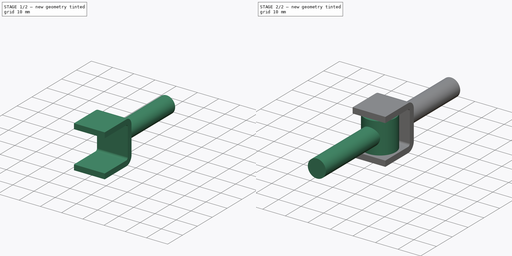
[diagram: build sequence overview — one tinted view per stage of 2, left to right]
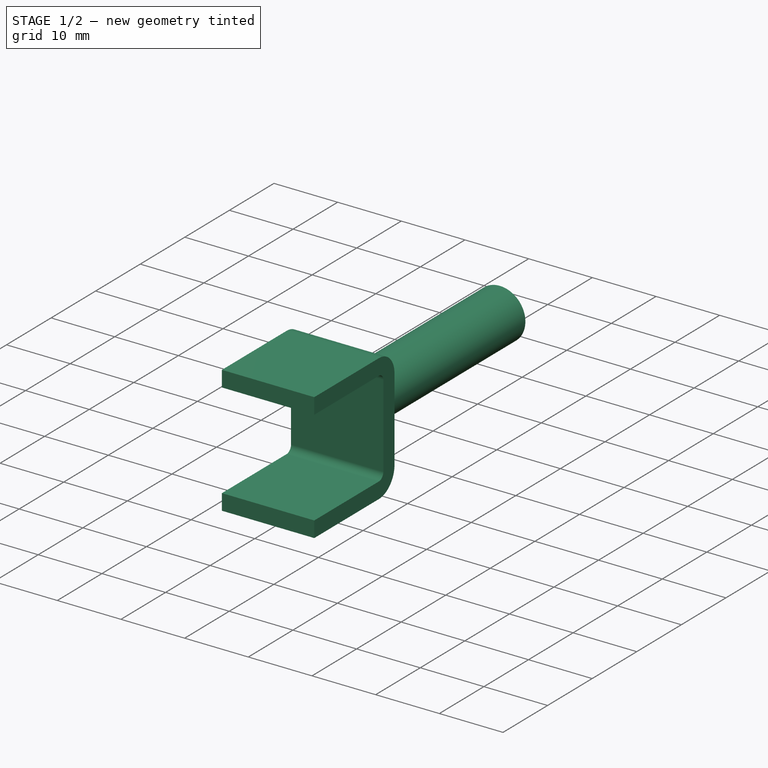
[diagram: stage 1 of 2 — iso view after this stage's code; geometry added in this stage tinted green]
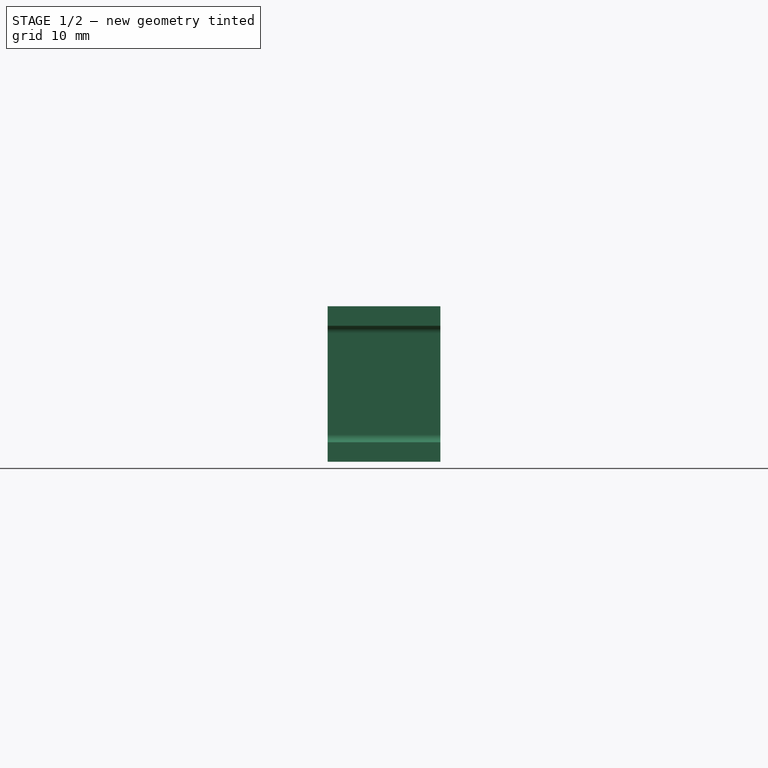
[diagram: stage 1 of 2 — front view after this stage's code; geometry added in this stage tinted green]
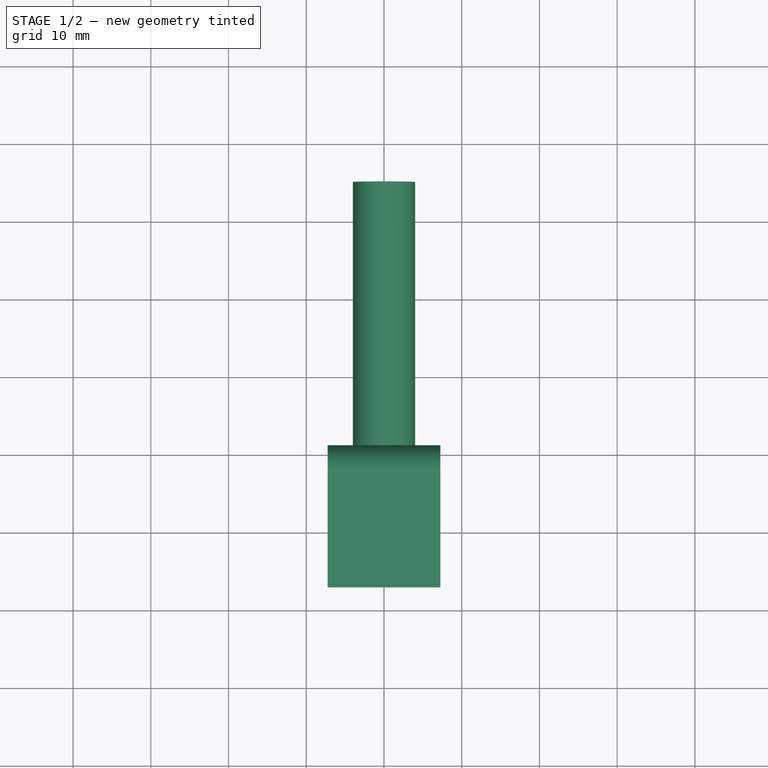
[diagram: stage 1 of 2 — top view after this stage's code; geometry added in this stage tinted green]
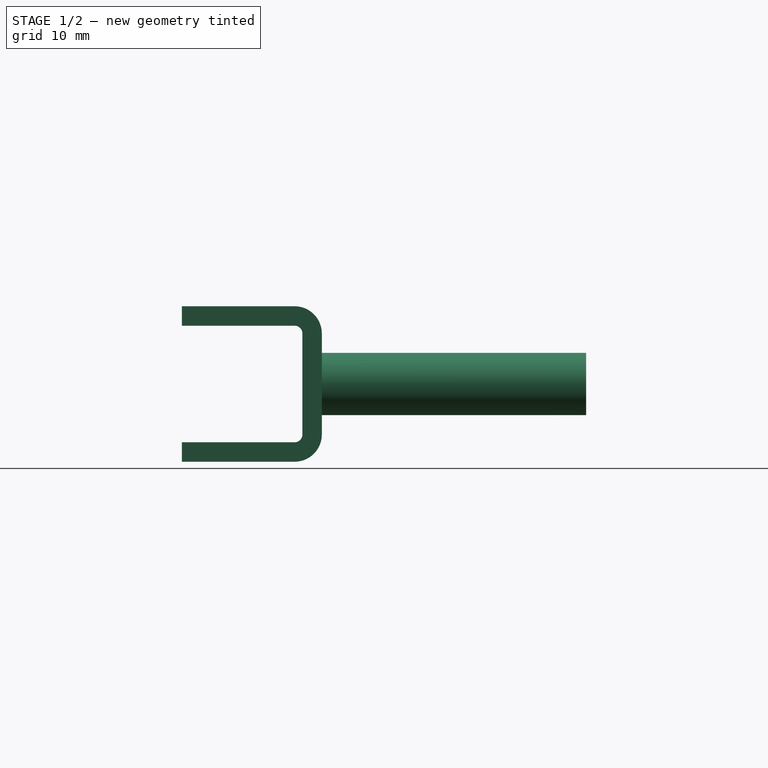
[diagram: stage 1 of 2 — right view after this stage's code; geometry added in this stage tinted green]
FCSTD DOCUMENT  (FreeCAD 0.22R34198 (Git))
Label: joint8mm
License: All rights reserved
LicenseURL: http://en.wikipedia.org/wiki/All_rights_reserved
objects: PartDesign::AdditiveCylinder×3, Sketcher::SketchObject×2, PartDesign::Body×2, PartDesign::FeaturePython×1, App::Part×1
note: 11 computed .brp shape members not serialized (recipe doc carries the construction recipe); baked Part::Feature solids carry a one-line shape summary decoded from their .brp

FEATURE [PartDesign::Body] Body
  Group = -> [Sketch,Cylinder,Cylinder001]
  Origin = -> Origin001
  Tip = -> Cylinder001
FEATURE [Sketcher::SketchObject] Sketch001
  FullyConstrained = true
  MapMode = 5
  Placement = pos=(0,0,0) rot=(0.57735,0.57735,0.57735;2.0944rad)
  Support = -> [YZ_Plane002]
  sketch-geometry (5):
    g0: LineSegment StartX=-7 StartY=-7.5 StartZ=0 EndX=-7 EndY=7.5 EndZ=0
    g1: LineSegment StartX=-7 StartY=7.5 StartZ=0 EndX=8.5 EndY=7.5 EndZ=0
    g2: LineSegment StartX=8.5 StartY=7.5 StartZ=0 EndX=8.5 EndY=-7.5 EndZ=0
    g3: LineSegment StartX=8.5 StartY=-7.5 StartZ=0 EndX=-7 EndY=-7.5 EndZ=0
    g4: GeomPoint X=0.75 Y=0 Z=0
  constraints (13):
    c: Coincident(g0,g1)
    c: Coincident(g1,g2)
    c: Coincident(g2,g3)
    c: Coincident(g3,g0)
    c: Horizontal(g1)
    c: Horizontal(g3)
    c: Vertical(g0)
    c: Vertical(g2)
    c: Symmetric(g1,g0,g4)
    c: PointOnObject(g4,g-1)
    c: DistanceY(g2,g2) = 15
    c: DistanceX(g1,g1) = 15.5
    c: DistanceX(g-1,g1) = 8.5
FEATURE [PartDesign::FeaturePython] BaseBend  # WARN: FeaturePython — macro-defined, semantics opaque (R4)
  BendSide = 1
  BendSketch = -> Sketch001
  MidPlane = true
  Reverse = false
  length = 14.5
  radius = 1
  thickness = 2.5
FEATURE [PartDesign::AdditiveCylinder] Cylinder002
  Angle = 360
  AttacherType = Attacher::AttachEngine3D
  AttachmentOffset = pos=(0,0,-11) rot=(1,0,0;3.14159rad)
  BaseFeature = -> BaseBend
  FirstAngle = 0
  Height = 34
  MapMode = 5
  Placement = pos=(0,11,2.4e-15) rot=(1,0,0;4.71239rad)
  Radius = 4
  SecondAngle = 0
  Support = -> [XZ_Plane002]
FEATURE [PartDesign::Body] Body001
  Group = -> [Sketch001,BaseBend,Cylinder002]
  Origin = -> Origin002
  Placement = pos=(0,0,0) rot=(0,0,-1;1.5708rad)
  Tip = -> Cylinder002
FEATURE [App::Part] Part
  Group = -> [Body,Body001]
  Origin = -> Origin
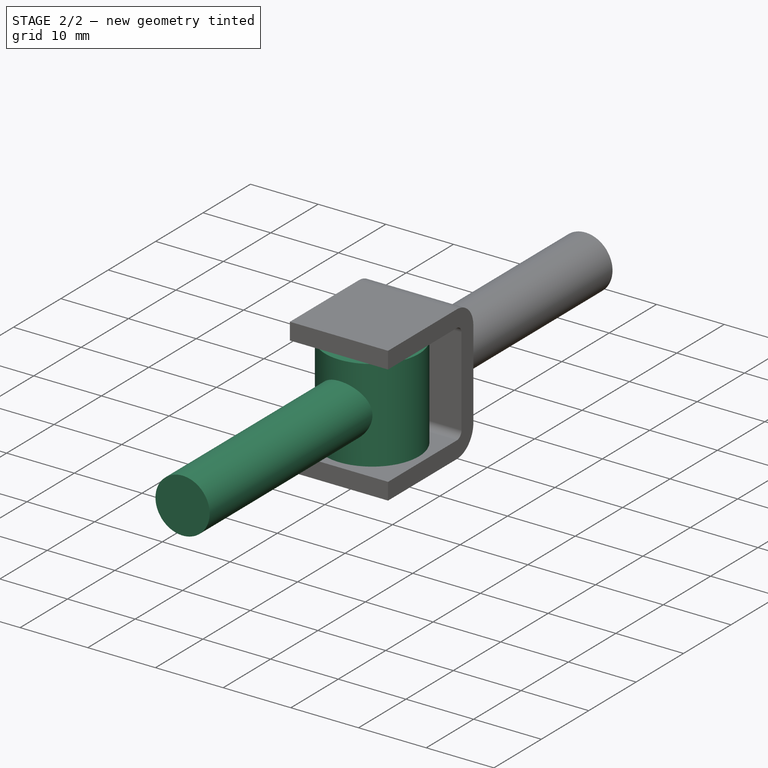
[diagram: stage 2 of 2 — iso view after this stage's code; geometry added in this stage tinted green]
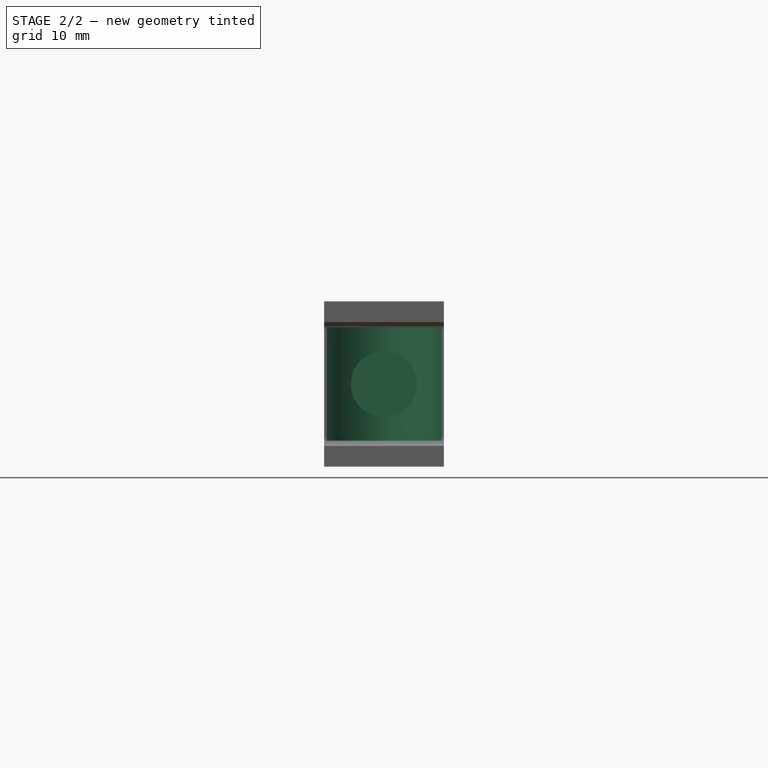
[diagram: stage 2 of 2 — front view after this stage's code; geometry added in this stage tinted green]
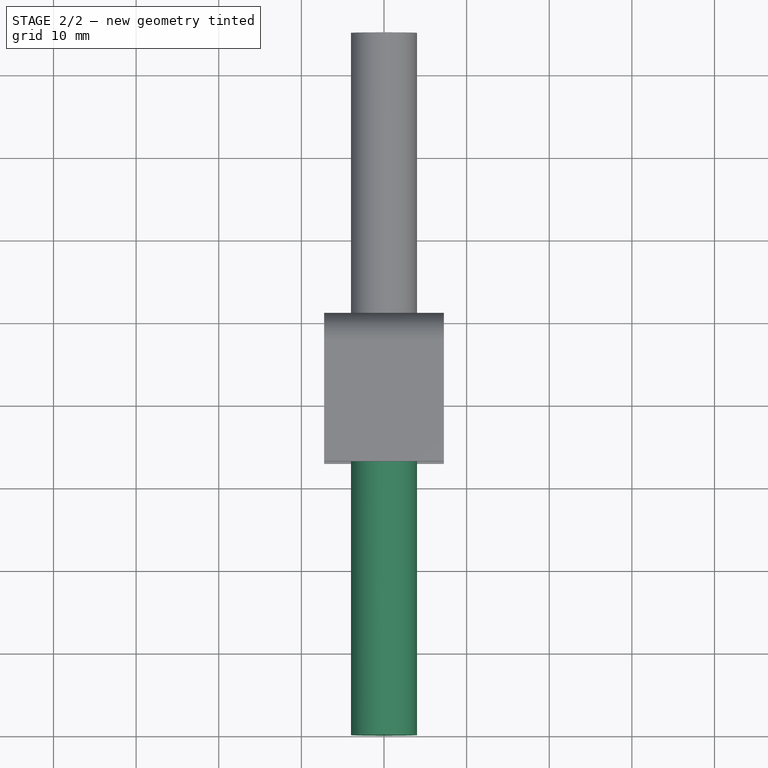
[diagram: stage 2 of 2 — top view after this stage's code; geometry added in this stage tinted green]
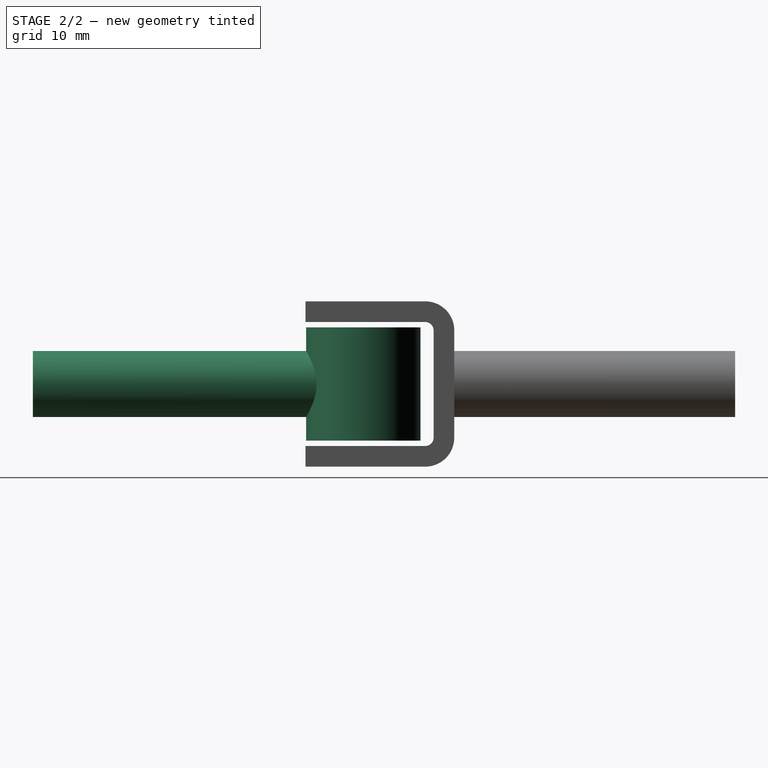
[diagram: stage 2 of 2 — right view after this stage's code; geometry added in this stage tinted green]
FEATURE [Sketcher::SketchObject] Sketch
  FullyConstrained = true
  MapMode = 5
  Support = -> [XY_Plane001]
FEATURE [PartDesign::AdditiveCylinder] Cylinder
  Angle = 360
  AttacherType = Attacher::AttachEngine3D
  AttachmentOffset = pos=(0,0,-6.85) rot=(0,0,1;0rad)
  FirstAngle = 0
  Height = 13.7
  MapMode = 5
  Placement = pos=(0,0,-6.85) rot=(0,0,1;0rad)
  Radius = 6.925
  SecondAngle = 0
  Support = -> [XY_Plane001]
  expr: .AttachmentOffset.Base.z = -Height / 2
FEATURE [PartDesign::AdditiveCylinder] Cylinder001
  Angle = 360
  AttacherType = Attacher::AttachEngine3D
  BaseFeature = -> Cylinder
  FirstAngle = 0
  Height = 40
  MapMode = 5
  Placement = pos=(0,0,0) rot=(1,0,0;1.5708rad)
  Radius = 4
  SecondAngle = 0
  Support = -> [XZ_Plane001]
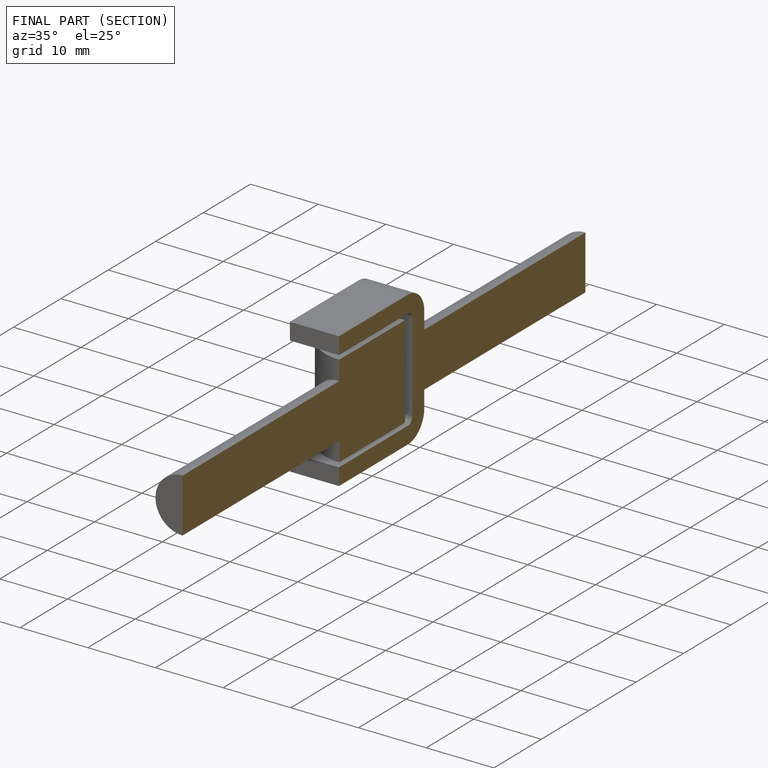
[diagram: finished part — half-section view (interior)]
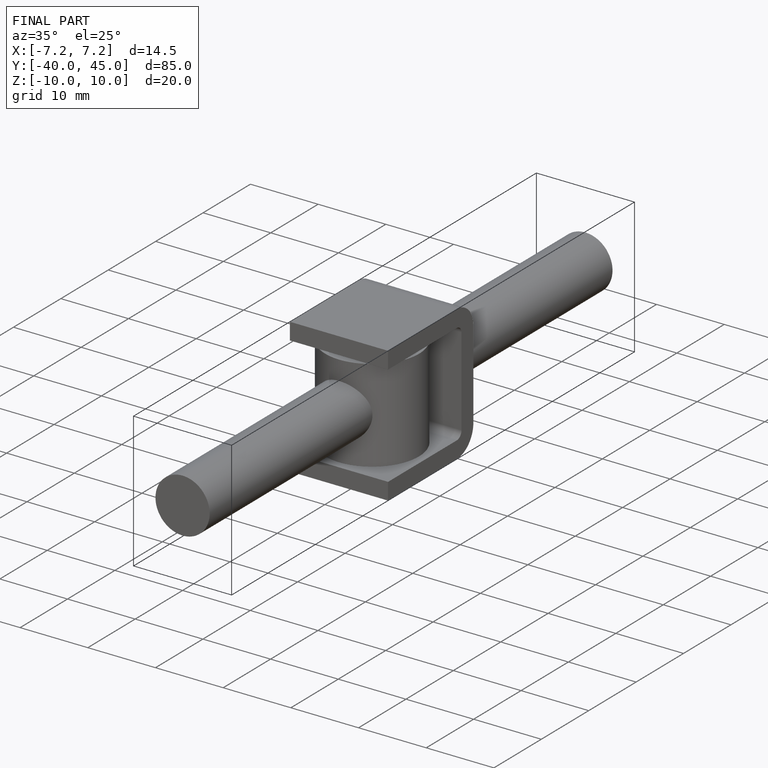
[diagram: finished part — iso view with bounding-box wireframe]
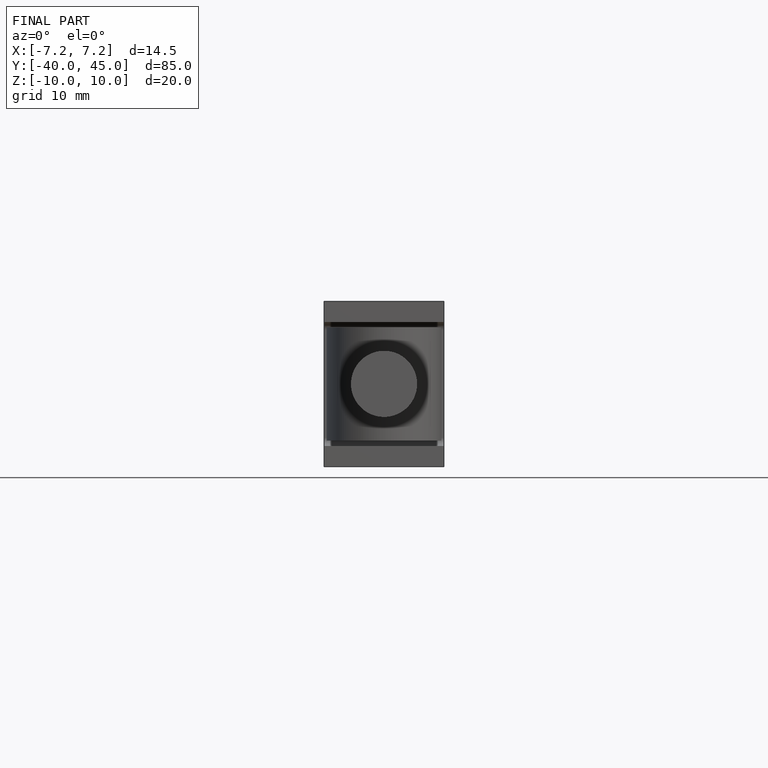
[diagram: finished part — front view with bounding-box wireframe]
